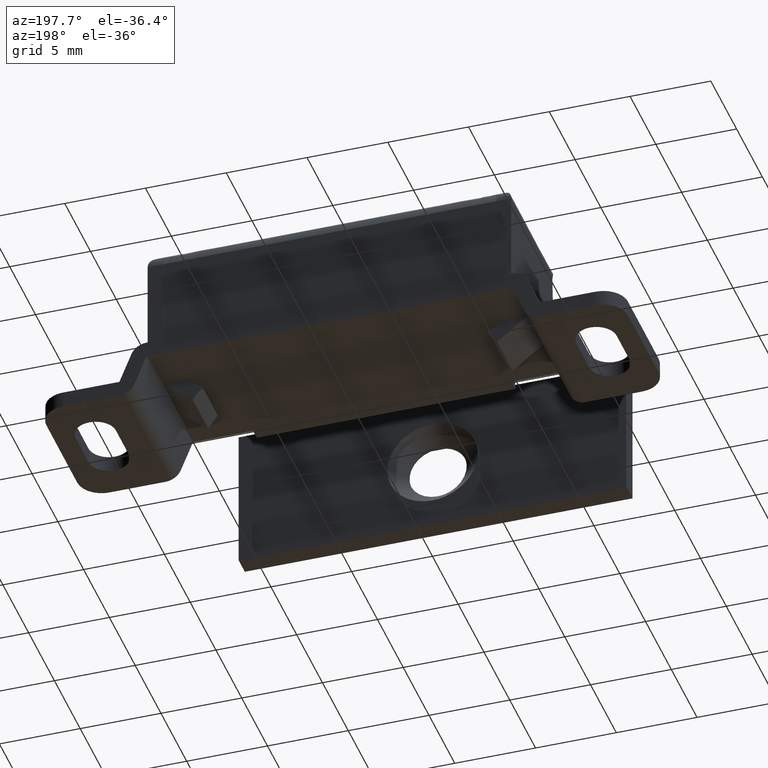
[diagram: clean part render]
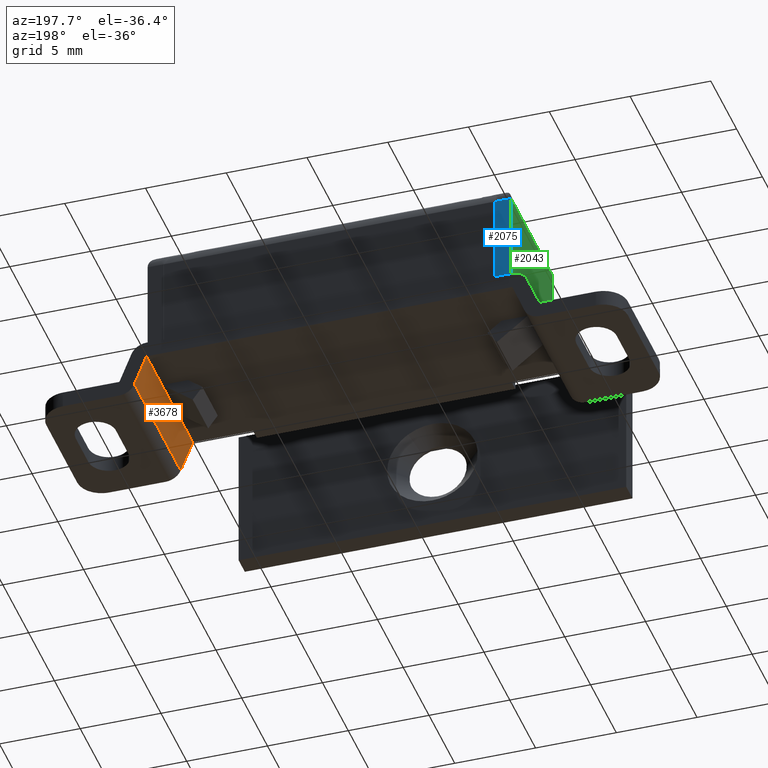
[diagram: same view with three faces highlighted in distinct colors, each labeled with its STEP entity id]
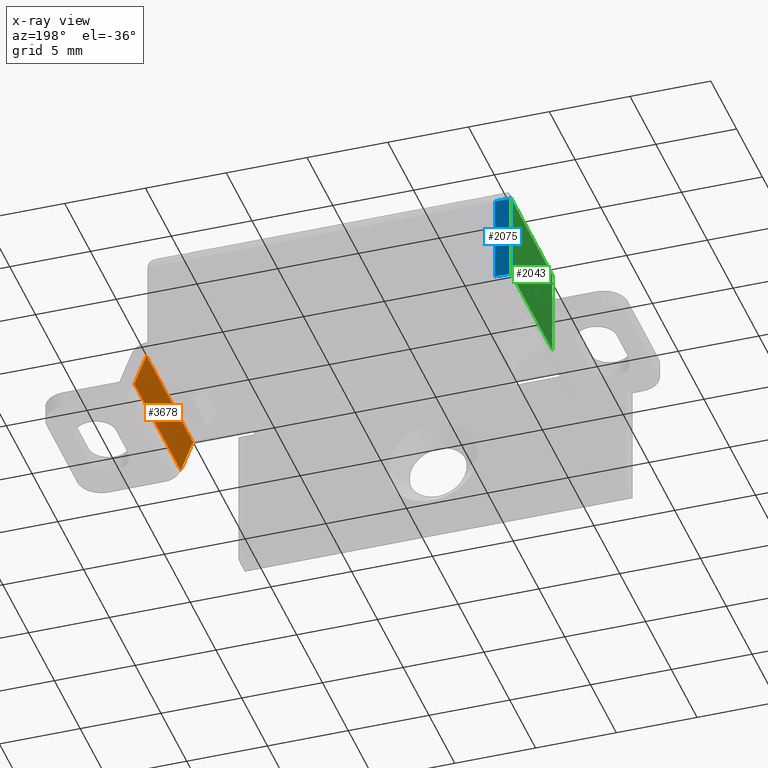
[diagram: x-ray of the same camera — body ghosted, the three highlighted faces saturated]
A machine part, auxiliary view with three faces highlighted in distinct colors.
The next image is the same camera in x-ray (body ghosted, the three faces saturated) — at least one of them is partly hidden behind the body in this view.
Their STEP definitions:

[orange] entity #3678 — the highlighted face is a freeform B-spline surface patch.
#2285=CARTESIAN_POINT('',(11.322963000000000,-6.0,2.499999999999901));
#2286=VERTEX_POINT('',#2285);
#2328=CARTESIAN_POINT('',(11.322963000000000,-3.0,2.499999999999901));
#2329=VERTEX_POINT('',#2328);
#2355=CARTESIAN_POINT('',(11.322963000000000,-3.0,2.499999999999901));
#2356=CARTESIAN_POINT('',(11.322963000000000,-6.0,2.499999999999901));
#2357=QUASI_UNIFORM_CURVE('',1,(#2355,#2356),.UNSPECIFIED.,.F.,.U.);
#2358=EDGE_CURVE('',#2329,#2286,#2357,.T.);
#3005=CARTESIAN_POINT('',(12.071520910064921,-8.999999999999890,0.628608724851168));
#3006=VERTEX_POINT('',#3005);
#3022=CARTESIAN_POINT('',(12.071520910064921,0.0,0.628608724851168));
#3023=VERTEX_POINT('',#3022);
#3024=CARTESIAN_POINT('',(12.071520910064921,0.0,0.628608724851168));
#3025=CARTESIAN_POINT('',(12.071520910064921,-8.999999999999890,0.628608724851168));
#3026=QUASI_UNIFORM_CURVE('',1,(#3024,#3025),.UNSPECIFIED.,.F.,.U.);
#3027=EDGE_CURVE('',#3023,#3006,#3026,.T.);
#3418=CARTESIAN_POINT('',(11.322963000000000,0.0,2.499999999999901));
#3419=VERTEX_POINT('',#3418);
#3420=CARTESIAN_POINT('',(11.322963000000000,0.0,2.499999999999901));
#3421=CARTESIAN_POINT('',(12.071520910064921,0.0,0.628608724851168));
#3422=QUASI_UNIFORM_CURVE('',1,(#3420,#3421),.UNSPECIFIED.,.F.,.U.);
#3423=EDGE_CURVE('',#3419,#3023,#3422,.T.);
#3451=CARTESIAN_POINT('',(11.322963000000000,-8.999999999999901,2.499999999999901));
#3452=VERTEX_POINT('',#3451);
#3458=CARTESIAN_POINT('',(11.322963000000000,-8.999999999999901,2.499999999999901));
#3459=CARTESIAN_POINT('',(12.071520910064921,-8.999999999999890,0.628608724851168));
#3460=QUASI_UNIFORM_CURVE('',1,(#3458,#3459),.UNSPECIFIED.,.F.,.U.);
#3461=EDGE_CURVE('',#3452,#3006,#3460,.T.);
#3657=CARTESIAN_POINT('',(11.285572498708479,-9.449549982556150,2.593476078402873));
#3658=CARTESIAN_POINT('',(12.108911397971189,-9.449549982556150,0.535132679911283));
#3659=CARTESIAN_POINT('',(11.285572498708479,0.449550223955060,2.593476078402873));
#3660=CARTESIAN_POINT('',(12.108911397971189,0.449550223955060,0.535132679911283));
#3661=B_SPLINE_SURFACE_WITH_KNOTS('',1,1,((#3657,#3659),(#3658,#3660)),.UNSPECIFIED.,.F.,.F.,.U.,(2,2),(2,2),(0.0,2.216904258003274),(0.0,9.899100206511209),.UNSPECIFIED.);
#3662=ORIENTED_EDGE('',*,*,#3423,.T.);
#3663=ORIENTED_EDGE('',*,*,#3027,.T.);
#3664=ORIENTED_EDGE('',*,*,#3461,.F.);
#3665=CARTESIAN_POINT('',(11.322963000000000,-8.999999999999901,2.499999999999901));
#3666=CARTESIAN_POINT('',(11.322963000000000,-6.0,2.499999999999901));
#3667=QUASI_UNIFORM_CURVE('',1,(#3665,#3666),.UNSPECIFIED.,.F.,.U.);
#3668=EDGE_CURVE('',#3452,#2286,#3667,.T.);
#3669=ORIENTED_EDGE('',*,*,#3668,.T.);
#3670=ORIENTED_EDGE('',*,*,#2358,.F.);
#3671=CARTESIAN_POINT('',(11.322963000000000,-3.0,2.499999999999901));
#3672=CARTESIAN_POINT('',(11.322963000000000,0.0,2.499999999999901));
#3673=QUASI_UNIFORM_CURVE('',1,(#3671,#3672),.UNSPECIFIED.,.F.,.U.);
#3674=EDGE_CURVE('',#2329,#3419,#3673,.T.);
#3675=ORIENTED_EDGE('',*,*,#3674,.T.);
#3676=EDGE_LOOP('',(#3662,#3663,#3664,#3669,#3670,#3675));
#3677=FACE_OUTER_BOUND('',#3676,.T.);
#3678=ADVANCED_FACE('',(#3677),#3661,.F.);

[blue] entity #2075 — the highlighted face is a freeform B-spline surface patch.
#1702=CARTESIAN_POINT('',(-10.250000000000000,-4.336809E-016,9.0));
#1703=VERTEX_POINT('',#1702);
#1704=CARTESIAN_POINT('',(-10.250000000000000,0.0,3.500000000000000));
#1705=VERTEX_POINT('',#1704);
#1706=CARTESIAN_POINT('',(-10.250000000000000,-4.336809E-016,9.0));
#1707=CARTESIAN_POINT('',(-10.250000000000000,0.0,3.500000000000000));
#1708=QUASI_UNIFORM_CURVE('',1,(#1706,#1707),.UNSPECIFIED.,.F.,.U.);
#1709=EDGE_CURVE('',#1703,#1705,#1708,.T.);
#1839=CARTESIAN_POINT('',(-11.250000000000000,0.0,9.0));
#1840=VERTEX_POINT('',#1839);
#1913=CARTESIAN_POINT('',(-11.250000000000000,0.0,9.0));
#1914=CARTESIAN_POINT('',(-10.250000000000000,-4.336809E-016,9.0));
#1915=QUASI_UNIFORM_CURVE('',1,(#1913,#1914),.UNSPECIFIED.,.F.,.U.);
#1916=EDGE_CURVE('',#1840,#1703,#1915,.T.);
#2021=CARTESIAN_POINT('',(-11.250000000000000,0.0,3.500000000000000));
#2022=VERTEX_POINT('',#2021);
#2036=CARTESIAN_POINT('',(-11.250000000000000,0.0,9.0));
#2037=CARTESIAN_POINT('',(-11.250000000000000,0.0,3.500000000000000));
#2038=QUASI_UNIFORM_CURVE('',1,(#2036,#2037),.UNSPECIFIED.,.F.,.U.);
#2039=EDGE_CURVE('',#1840,#2022,#2038,.T.);
#2060=CARTESIAN_POINT('',(-11.299949998061811,0.0,9.274724989339934));
#2061=CARTESIAN_POINT('',(-10.200049975116100,0.0,9.274724989339934));
#2062=CARTESIAN_POINT('',(-11.299949998061811,0.0,3.225274863138571));
#2063=CARTESIAN_POINT('',(-10.200049975116100,0.0,3.225274863138571));
#2064=B_SPLINE_SURFACE_WITH_KNOTS('',1,1,((#2060,#2062),(#2061,#2063)),.UNSPECIFIED.,.F.,.F.,.U.,(2,2),(2,2),(0.041708334948495,0.958291687403247),(0.0,6.049450126201363),.UNSPECIFIED.);
#2065=ORIENTED_EDGE('',*,*,#1709,.T.);
#2066=CARTESIAN_POINT('',(-11.250000000000000,0.0,3.500000000000000));
#2067=CARTESIAN_POINT('',(-10.250000000000000,0.0,3.500000000000000));
#2068=QUASI_UNIFORM_CURVE('',1,(#2066,#2067),.UNSPECIFIED.,.F.,.U.);
#2069=EDGE_CURVE('',#2022,#1705,#2068,.T.);
#2070=ORIENTED_EDGE('',*,*,#2069,.F.);
#2071=ORIENTED_EDGE('',*,*,#2039,.F.);
#2072=ORIENTED_EDGE('',*,*,#1916,.T.);
#2073=EDGE_LOOP('',(#2065,#2070,#2071,#2072));
#2074=FACE_OUTER_BOUND('',#2073,.T.);
#2075=ADVANCED_FACE('',(#2074),#2064,.T.);

[green] entity #2043 — the highlighted face is a freeform B-spline surface patch.
#1238=CARTESIAN_POINT('',(-11.250000000000000,-6.0,3.500000000000000));
#1239=VERTEX_POINT('',#1238);
#1309=CARTESIAN_POINT('',(-11.250000000000000,-3.0,3.500000000000000));
#1310=VERTEX_POINT('',#1309);
#1389=CARTESIAN_POINT('',(-11.250000000000000,-3.0,3.500000000000000));
#1390=CARTESIAN_POINT('',(-11.250000000000000,-6.0,3.500000000000000));
#1391=QUASI_UNIFORM_CURVE('',1,(#1389,#1390),.UNSPECIFIED.,.F.,.U.);
#1392=EDGE_CURVE('',#1310,#1239,#1391,.T.);
#1518=CARTESIAN_POINT('',(-11.250000000000000,-8.000000000000119,9.0));
#1519=VERTEX_POINT('',#1518);
#1535=CARTESIAN_POINT('',(-11.250000000000000,-8.000000000000119,3.500000000000000));
#1536=VERTEX_POINT('',#1535);
#1537=CARTESIAN_POINT('',(-11.250000000000000,-8.000000000000119,3.500000000000000));
#1538=CARTESIAN_POINT('',(-11.250000000000000,-8.000000000000119,9.0));
#1539=QUASI_UNIFORM_CURVE('',1,(#1537,#1538),.UNSPECIFIED.,.F.,.U.);
#1540=EDGE_CURVE('',#1536,#1519,#1539,.T.);
#1839=CARTESIAN_POINT('',(-11.250000000000000,0.0,9.0));
#1840=VERTEX_POINT('',#1839);
#1841=CARTESIAN_POINT('',(-11.250000000000000,-8.000000000000119,9.0));
#1842=CARTESIAN_POINT('',(-11.250000000000000,0.0,9.0));
#1843=QUASI_UNIFORM_CURVE('',1,(#1841,#1842),.UNSPECIFIED.,.F.,.U.);
#1844=EDGE_CURVE('',#1519,#1840,#1843,.T.);
#2016=CARTESIAN_POINT('',(-11.250000000000000,-8.399599984494573,3.225275010660067));
#2017=CARTESIAN_POINT('',(-11.250000000000000,-8.399599984494573,9.274725136861429));
#2018=CARTESIAN_POINT('',(-11.250000000000000,0.399600199071174,3.225275010660067));
#2019=CARTESIAN_POINT('',(-11.250000000000000,0.399600199071174,9.274725136861429));
#2020=B_SPLINE_SURFACE_WITH_KNOTS('',1,1,((#2016,#2018),(#2017,#2019)),.UNSPECIFIED.,.F.,.F.,.U.,(2,2),(2,2),(0.0,6.049450126201363),(0.0,8.799200183565748),.UNSPECIFIED.);
#2021=CARTESIAN_POINT('',(-11.250000000000000,0.0,3.500000000000000));
#2022=VERTEX_POINT('',#2021);
#2023=CARTESIAN_POINT('',(-11.250000000000000,0.0,3.500000000000000));
#2024=CARTESIAN_POINT('',(-11.250000000000000,-3.0,3.500000000000000));
#2025=QUASI_UNIFORM_CURVE('',1,(#2023,#2024),.UNSPECIFIED.,.F.,.U.);
#2026=EDGE_CURVE('',#2022,#1310,#2025,.T.);
#2027=ORIENTED_EDGE('',*,*,#2026,.T.);
#2028=ORIENTED_EDGE('',*,*,#1392,.T.);
#2029=CARTESIAN_POINT('',(-11.250000000000000,-6.0,3.500000000000000));
#2030=CARTESIAN_POINT('',(-11.250000000000000,-8.000000000000119,3.500000000000000));
#2031=QUASI_UNIFORM_CURVE('',1,(#2029,#2030),.UNSPECIFIED.,.F.,.U.);
#2032=EDGE_CURVE('',#1239,#1536,#2031,.T.);
#2033=ORIENTED_EDGE('',*,*,#2032,.T.);
#2034=ORIENTED_EDGE('',*,*,#1540,.T.);
#2035=ORIENTED_EDGE('',*,*,#1844,.T.);
#2036=CARTESIAN_POINT('',(-11.250000000000000,0.0,9.0));
#2037=CARTESIAN_POINT('',(-11.250000000000000,0.0,3.500000000000000));
#2038=QUASI_UNIFORM_CURVE('',1,(#2036,#2037),.UNSPECIFIED.,.F.,.U.);
#2039=EDGE_CURVE('',#1840,#2022,#2038,.T.);
#2040=ORIENTED_EDGE('',*,*,#2039,.T.);
#2041=EDGE_LOOP('',(#2027,#2028,#2033,#2034,#2035,#2040));
#2042=FACE_OUTER_BOUND('',#2041,.T.);
#2043=ADVANCED_FACE('',(#2042),#2020,.T.);